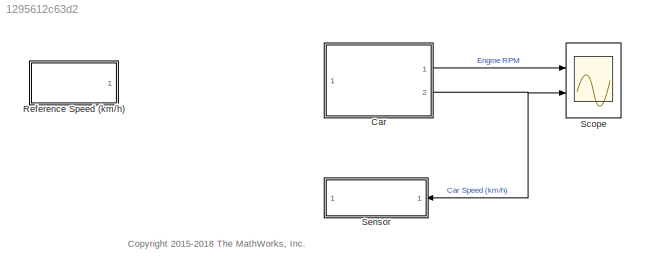
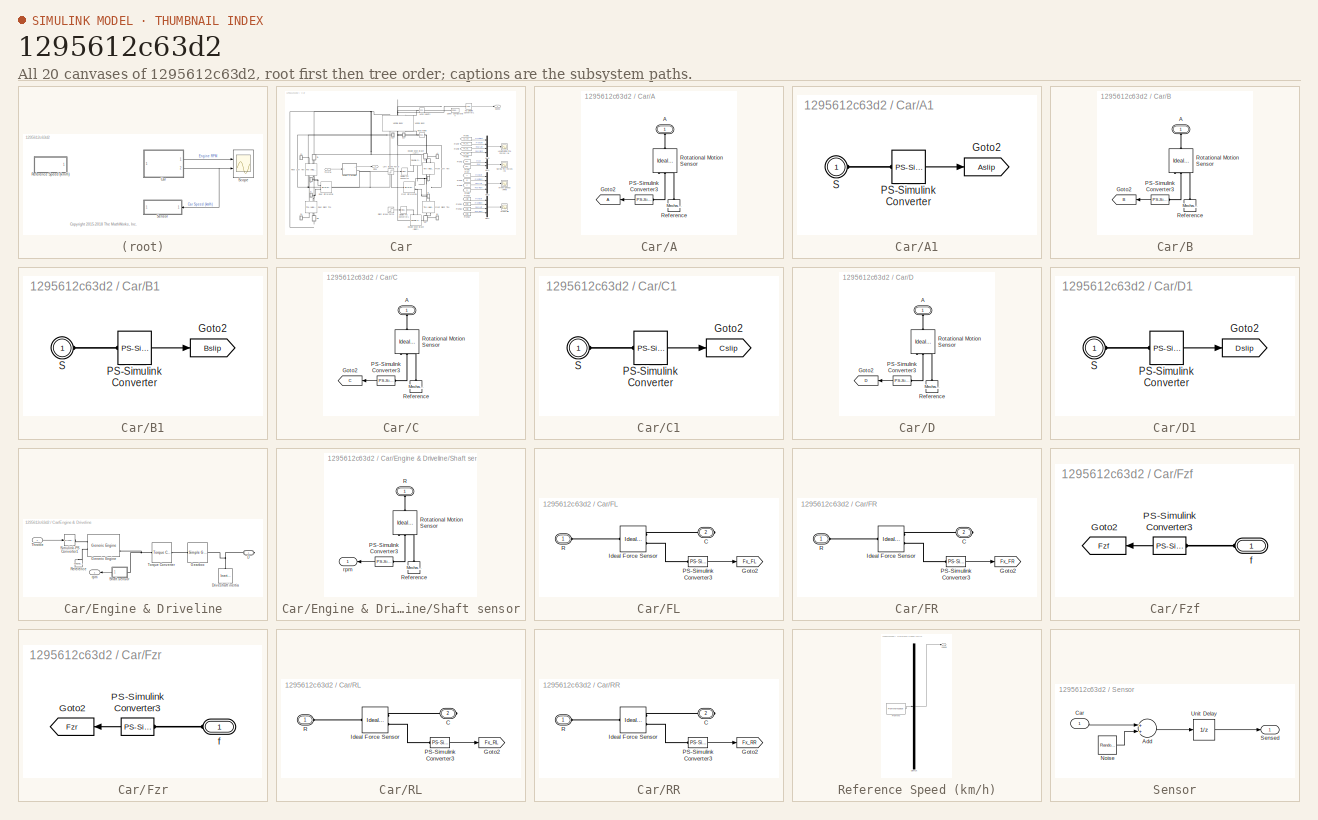
[diagram: thumbnail index - all 20 canvases of the model, root first then tree order]
MODEL slx_1295612c63d2
KIND model
CONFIG AbsTol = 1e-3
CONFIG EnableMultiTasking = on
CONFIG FixedStep = auto
CONFIG MaxStep = auto
CONFIG MinStep = auto
CONFIG RelTol = 1e-3
CONFIG SampleTimeConstraint = Unconstrained
CONFIG Solver = ode23t
CONFIG SolverName = ode23t
CONFIG StartTime = 0.0
CONFIG StopTime = 30
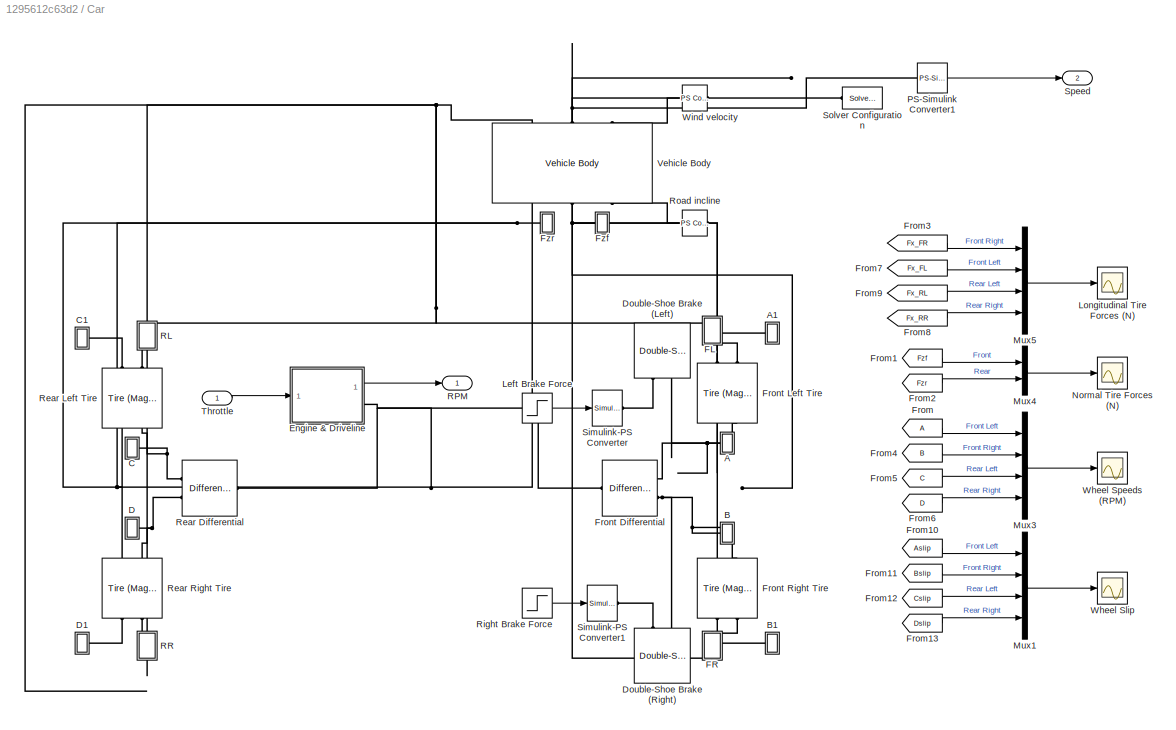
BLOCK [SubSystem] Car
  Ports = [1, 2]
  RequestExecContextInheritance = off
  Variant = off
BLOCK [SubSystem] Car/A
  Ports = [0, 0, 0, 0, 0, 1]
  RequestExecContextInheritance = off
  Variant = off
BLOCK [PMIOPort] Car/A/A
  Port = 1
  Side = Left
BLOCK [Goto] Car/A/Goto2
  TagVisibility = global
BLOCK [Reference] Car/A/PS-Simulink Converter3  REF=nesl_utility/PS-Simulink
Converter
  Ports = [0, 1, 0, 0, 0, 1]
  SourceBlock = nesl_utility/PS-Simulink\nConverter
  SourceProductBaseCode = SS
  SourceProductName = Simscape
  SourceType = PS-Simulink\nConverter
BLOCK [Reference] Car/A/Reference  REF=fl_lib/Mechanical/Rotational Elements/Mechanical
Rotational Reference
  Ports = [0, 0, 0, 0, 0, 1]
  SourceBlock = fl_lib/Mechanical/Rotational Elements/Mechanical\nRotational Reference
  SourceProductBaseCode = SS
  SourceProductName = Simscape
  SourceType = Mechanical\nRotational Reference
BLOCK [Reference] Car/A/Rotational Motion Sensor  REF=fl_lib/Mechanical/Mechanical Sensors/Ideal Rotational
Motion Sensor
  Ports = [0, 0, 0, 0, 0, 1, 3]
  SourceBlock = fl_lib/Mechanical/Mechanical Sensors/Ideal Rotational\nMotion Sensor
  SourceProductBaseCode = SS
  SourceProductName = Simscape
  SourceType = Ideal Rotational\nMotion Sensor
BLOCK [SubSystem] Car/A1
  Ports = [0, 0, 0, 0, 0, 1]
  RequestExecContextInheritance = off
  Variant = off
BLOCK [Goto] Car/A1/Goto2
  GotoTag = Aslip
  TagVisibility = global
BLOCK [Reference] Car/A1/PS-Simulink Converter  REF=nesl_utility/PS-Simulink
Converter
  Ports = [0, 1, 0, 0, 0, 1]
  SourceBlock = nesl_utility/PS-Simulink\nConverter
  SourceProductBaseCode = SS
  SourceProductName = Simscape
  SourceType = PS-Simulink\nConverter
BLOCK [PMIOPort] Car/A1/S
  Port = 1
  Side = Left
BLOCK [SubSystem] Car/B
  Ports = [0, 0, 0, 0, 0, 1]
  RequestExecContextInheritance = off
  Variant = off
BLOCK [PMIOPort] Car/B/A
  Port = 1
  Side = Left
BLOCK [Goto] Car/B/Goto2
  GotoTag = B
  TagVisibility = global
BLOCK [Reference] Car/B/PS-Simulink Converter3  REF=nesl_utility/PS-Simulink
Converter
  Ports = [0, 1, 0, 0, 0, 1]
  SourceBlock = nesl_utility/PS-Simulink\nConverter
  SourceProductBaseCode = SS
  SourceProductName = Simscape
  SourceType = PS-Simulink\nConverter
BLOCK [Reference] Car/B/Reference  REF=fl_lib/Mechanical/Rotational Elements/Mechanical
Rotational Reference
  Ports = [0, 0, 0, 0, 0, 1]
  SourceBlock = fl_lib/Mechanical/Rotational Elements/Mechanical\nRotational Reference
  SourceProductBaseCode = SS
  SourceProductName = Simscape
  SourceType = Mechanical\nRotational Reference
BLOCK [Reference] Car/B/Rotational Motion Sensor  REF=fl_lib/Mechanical/Mechanical Sensors/Ideal Rotational
Motion Sensor
  Ports = [0, 0, 0, 0, 0, 1, 3]
  SourceBlock = fl_lib/Mechanical/Mechanical Sensors/Ideal Rotational\nMotion Sensor
  SourceProductBaseCode = SS
  SourceProductName = Simscape
  SourceType = Ideal Rotational\nMotion Sensor
BLOCK [SubSystem] Car/B1
  Ports = [0, 0, 0, 0, 0, 1]
  RequestExecContextInheritance = off
  Variant = off
BLOCK [Goto] Car/B1/Goto2
  GotoTag = Bslip
  TagVisibility = global
BLOCK [Reference] Car/B1/PS-Simulink Converter  REF=nesl_utility/PS-Simulink
Converter
  Ports = [0, 1, 0, 0, 0, 1]
  SourceBlock = nesl_utility/PS-Simulink\nConverter
  SourceProductBaseCode = SS
  SourceProductName = Simscape
  SourceType = PS-Simulink\nConverter
BLOCK [PMIOPort] Car/B1/S
  Port = 1
  Side = Left
BLOCK [SubSystem] Car/C
  Ports = [0, 0, 0, 0, 0, 1]
  RequestExecContextInheritance = off
  Variant = off
BLOCK [PMIOPort] Car/C/A
  Port = 1
  Side = Left
BLOCK [Goto] Car/C/Goto2
  GotoTag = C
  TagVisibility = global
BLOCK [Reference] Car/C/PS-Simulink Converter3  REF=nesl_utility/PS-Simulink
Converter
  Ports = [0, 1, 0, 0, 0, 1]
  SourceBlock = nesl_utility/PS-Simulink\nConverter
  SourceProductBaseCode = SS
  SourceProductName = Simscape
  SourceType = PS-Simulink\nConverter
BLOCK [Reference] Car/C/Reference  REF=fl_lib/Mechanical/Rotational Elements/Mechanical
Rotational Reference
  Ports = [0, 0, 0, 0, 0, 1]
  SourceBlock = fl_lib/Mechanical/Rotational Elements/Mechanical\nRotational Reference
  SourceProductBaseCode = SS
  SourceProductName = Simscape
  SourceType = Mechanical\nRotational Reference
BLOCK [Reference] Car/C/Rotational Motion Sensor  REF=fl_lib/Mechanical/Mechanical Sensors/Ideal Rotational
Motion Sensor
  Ports = [0, 0, 0, 0, 0, 1, 3]
  SourceBlock = fl_lib/Mechanical/Mechanical Sensors/Ideal Rotational\nMotion Sensor
  SourceProductBaseCode = SS
  SourceProductName = Simscape
  SourceType = Ideal Rotational\nMotion Sensor
BLOCK [SubSystem] Car/C1
  Ports = [0, 0, 0, 0, 0, 1]
  RequestExecContextInheritance = off
  Variant = off
BLOCK [Goto] Car/C1/Goto2
  GotoTag = Cslip
  TagVisibility = global
BLOCK [Reference] Car/C1/PS-Simulink Converter  REF=nesl_utility/PS-Simulink
Converter
  Ports = [0, 1, 0, 0, 0, 1]
  SourceBlock = nesl_utility/PS-Simulink\nConverter
  SourceProductBaseCode = SS
  SourceProductName = Simscape
  SourceType = PS-Simulink\nConverter
BLOCK [PMIOPort] Car/C1/S
  Port = 1
  Side = Left
BLOCK [SubSystem] Car/D
  Ports = [0, 0, 0, 0, 0, 1]
  RequestExecContextInheritance = off
  Variant = off
BLOCK [PMIOPort] Car/D/A
  Port = 1
  Side = Left
BLOCK [Goto] Car/D/Goto2
  GotoTag = D
  TagVisibility = global
BLOCK [Reference] Car/D/PS-Simulink Converter3  REF=nesl_utility/PS-Simulink
Converter
  Ports = [0, 1, 0, 0, 0, 1]
  SourceBlock = nesl_utility/PS-Simulink\nConverter
  SourceProductBaseCode = SS
  SourceProductName = Simscape
  SourceType = PS-Simulink\nConverter
BLOCK [Reference] Car/D/Reference  REF=fl_lib/Mechanical/Rotational Elements/Mechanical
Rotational Reference
  Ports = [0, 0, 0, 0, 0, 1]
  SourceBlock = fl_lib/Mechanical/Rotational Elements/Mechanical\nRotational Reference
  SourceProductBaseCode = SS
  SourceProductName = Simscape
  SourceType = Mechanical\nRotational Reference
BLOCK [Reference] Car/D/Rotational Motion Sensor  REF=fl_lib/Mechanical/Mechanical Sensors/Ideal Rotational
Motion Sensor
  Ports = [0, 0, 0, 0, 0, 1, 3]
  SourceBlock = fl_lib/Mechanical/Mechanical Sensors/Ideal Rotational\nMotion Sensor
  SourceProductBaseCode = SS
  SourceProductName = Simscape
  SourceType = Ideal Rotational\nMotion Sensor
BLOCK [SubSystem] Car/D1
  Ports = [0, 0, 0, 0, 0, 1]
  RequestExecContextInheritance = off
  Variant = off
BLOCK [Goto] Car/D1/Goto2
  GotoTag = Dslip
  TagVisibility = global
BLOCK [Reference] Car/D1/PS-Simulink Converter  REF=nesl_utility/PS-Simulink
Converter
  Ports = [0, 1, 0, 0, 0, 1]
  SourceBlock = nesl_utility/PS-Simulink\nConverter
  SourceProductBaseCode = SS
  SourceProductName = Simscape
  SourceType = PS-Simulink\nConverter
BLOCK [PMIOPort] Car/D1/S
  Port = 1
  Side = Left
BLOCK [Reference] Car/Double-Shoe Brake (Left)  REF=sdl_lib/Brakes & Detents/Rotational/Double-Shoe Brake
  Ports = [0, 0, 0, 0, 0, 2]
  SourceBlock = sdl_lib/Brakes & Detents/Rotational/Double-Shoe Brake
  SourceProductBaseCode = LD
  SourceProductName = Simscape Driveline
  SourceType = Double-Shoe Brake
BLOCK [Reference] Car/Double-Shoe Brake (Right)  REF=sdl_lib/Brakes & Detents/Rotational/Double-Shoe Brake
  Ports = [0, 0, 0, 0, 0, 2]
  SourceBlock = sdl_lib/Brakes & Detents/Rotational/Double-Shoe Brake
  SourceProductBaseCode = LD
  SourceProductName = Simscape Driveline
  SourceType = Double-Shoe Brake
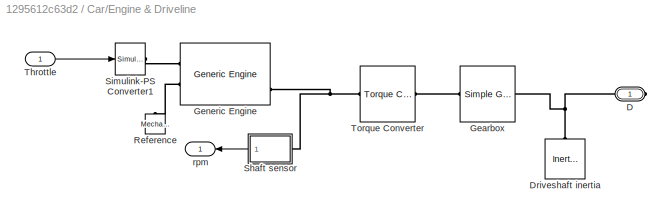
BLOCK [SubSystem] Car/Engine & Driveline
  Ports = [1, 1, 0, 0, 0, 0, 1]
  RequestExecContextInheritance = off
  Variant = off
BLOCK [PMIOPort] Car/Engine & Driveline/D
  Port = 1
  Side = Right
BLOCK [Reference] Car/Engine & Driveline/Driveshaft inertia  REF=fl_lib/Mechanical/Rotational Elements/Inertia
  Ports = [0, 0, 0, 0, 0, 1]
  SourceBlock = fl_lib/Mechanical/Rotational Elements/Inertia
  SourceProductBaseCode = SS
  SourceProductName = Simscape
  SourceType = Inertia
BLOCK [Reference] Car/Engine & Driveline/Gearbox  REF=sdl_lib/Gears/Simple Gear
  Ports = [0, 0, 0, 0, 0, 1, 1]
  SourceBlock = sdl_lib/Gears/Simple Gear
  SourceProductBaseCode = LD
  SourceProductName = Simscape Driveline
  SourceType = Simple Gear
BLOCK [Reference] Car/Engine & Driveline/Generic Engine  REF=sdl_lib/Engines/Generic Engine
  Ports = [0, 0, 0, 0, 0, 2, 3]
  SourceBlock = sdl_lib/Engines/Generic Engine
  SourceProductBaseCode = LD
  SourceProductName = Simscape Driveline
  SourceType = Generic Engine
BLOCK [Reference] Car/Engine & Driveline/Reference  REF=fl_lib/Mechanical/Rotational Elements/Mechanical
Rotational Reference
  Ports = [0, 0, 0, 0, 0, 1]
  SourceBlock = fl_lib/Mechanical/Rotational Elements/Mechanical\nRotational Reference
  SourceProductBaseCode = SS
  SourceProductName = Simscape
  SourceType = Mechanical\nRotational Reference
BLOCK [SubSystem] Car/Engine & Driveline/Shaft sensor
  Ports = [0, 1, 0, 0, 0, 1]
  RequestExecContextInheritance = off
  Variant = off
BLOCK [Reference] Car/Engine & Driveline/Shaft sensor/PS-Simulink Converter3  REF=nesl_utility/PS-Simulink
Converter
  Ports = [0, 1, 0, 0, 0, 1]
  SourceBlock = nesl_utility/PS-Simulink\nConverter
  SourceProductBaseCode = SS
  SourceProductName = Simscape
  SourceType = PS-Simulink\nConverter
BLOCK [PMIOPort] Car/Engine & Driveline/Shaft sensor/R
  Port = 1
  Side = Left
BLOCK [Reference] Car/Engine & Driveline/Shaft sensor/Reference  REF=fl_lib/Mechanical/Rotational Elements/Mechanical
Rotational Reference
  Ports = [0, 0, 0, 0, 0, 1]
  SourceBlock = fl_lib/Mechanical/Rotational Elements/Mechanical\nRotational Reference
  SourceProductBaseCode = SS
  SourceProductName = Simscape
  SourceType = Mechanical\nRotational Reference
BLOCK [Reference] Car/Engine & Driveline/Shaft sensor/Rotational Motion Sensor  REF=fl_lib/Mechanical/Mechanical Sensors/Ideal Rotational
Motion Sensor
  Ports = [0, 0, 0, 0, 0, 1, 3]
  SourceBlock = fl_lib/Mechanical/Mechanical Sensors/Ideal Rotational\nMotion Sensor
  SourceProductBaseCode = SS
  SourceProductName = Simscape
  SourceType = Ideal Rotational\nMotion Sensor
BLOCK [Outport] Car/Engine & Driveline/Shaft sensor/rpm
  IconDisplay = Port number
BLOCK [Reference] Car/Engine & Driveline/Simulink-PS Converter1  REF=nesl_utility/Simulink-PS
Converter
  Ports = [1, 0, 0, 0, 0, 0, 1]
  SourceBlock = nesl_utility/Simulink-PS\nConverter
  SourceProductBaseCode = SS
  SourceProductName = Simscape
  SourceType = Simulink-PS\nConverter
BLOCK [Inport] Car/Engine & Driveline/Throttle
  IconDisplay = Port number
BLOCK [Reference] Car/Engine & Driveline/Torque Converter  REF=sdl_lib/Couplings & Drives/Torque Converter
  Ports = [0, 0, 0, 0, 0, 1, 1]
  SourceBlock = sdl_lib/Couplings & Drives/Torque Converter
  SourceProductBaseCode = LD
  SourceProductName = Simscape Driveline
  SourceType = Torque Converter
BLOCK [Outport] Car/Engine & Driveline/rpm
  IconDisplay = Port number
BLOCK [SubSystem] Car/FL
  Ports = [0, 0, 0, 0, 0, 1, 1]
  RequestExecContextInheritance = off
  Variant = off
BLOCK [PMIOPort] Car/FL/C
  Port = 2
  Side = Right
BLOCK [Goto] Car/FL/Goto2
  GotoTag = Fx_FL
  TagVisibility = global
BLOCK [Reference] Car/FL/Ideal Force Sensor  REF=fl_lib/Mechanical/Mechanical Sensors/Ideal Force Sensor
  Ports = [0, 0, 0, 0, 0, 1, 2]
  SourceBlock = fl_lib/Mechanical/Mechanical Sensors/Ideal Force Sensor
  SourceProductBaseCode = SS
  SourceProductName = Simscape
  SourceType = Ideal Force Sensor
BLOCK [Reference] Car/FL/PS-Simulink Converter3  REF=nesl_utility/PS-Simulink
Converter
  Ports = [0, 1, 0, 0, 0, 1]
  SourceBlock = nesl_utility/PS-Simulink\nConverter
  SourceProductBaseCode = SS
  SourceProductName = Simscape
  SourceType = PS-Simulink\nConverter
BLOCK [PMIOPort] Car/FL/R
  Port = 1
  Side = Left
BLOCK [SubSystem] Car/FR
  Ports = [0, 0, 0, 0, 0, 1, 1]
  RequestExecContextInheritance = off
  Variant = off
BLOCK [PMIOPort] Car/FR/C
  Port = 2
  Side = Right
BLOCK [Goto] Car/FR/Goto2
  GotoTag = Fx_FR
  TagVisibility = global
BLOCK [Reference] Car/FR/Ideal Force Sensor  REF=fl_lib/Mechanical/Mechanical Sensors/Ideal Force Sensor
  Ports = [0, 0, 0, 0, 0, 1, 2]
  SourceBlock = fl_lib/Mechanical/Mechanical Sensors/Ideal Force Sensor
  SourceProductBaseCode = SS
  SourceProductName = Simscape
  SourceType = Ideal Force Sensor
BLOCK [Reference] Car/FR/PS-Simulink Converter3  REF=nesl_utility/PS-Simulink
Converter
  Ports = [0, 1, 0, 0, 0, 1]
  SourceBlock = nesl_utility/PS-Simulink\nConverter
  SourceProductBaseCode = SS
  SourceProductName = Simscape
  SourceType = PS-Simulink\nConverter
BLOCK [PMIOPort] Car/FR/R
  Port = 1
  Side = Left
BLOCK [From] Car/From
  CloseFcn = tagdialog Close
  TagVisibility = global
BLOCK [From] Car/From1
  CloseFcn = tagdialog Close
  GotoTag = Fzf
  TagVisibility = global
BLOCK [From] Car/From10
  CloseFcn = tagdialog Close
  GotoTag = Aslip
  TagVisibility = global
BLOCK [From] Car/From11
  CloseFcn = tagdialog Close
  GotoTag = Bslip
  TagVisibility = global
BLOCK [From] Car/From12
  CloseFcn = tagdialog Close
  GotoTag = Cslip
  TagVisibility = global
BLOCK [From] Car/From13
  CloseFcn = tagdialog Close
  GotoTag = Dslip
  TagVisibility = global
BLOCK [From] Car/From2
  CloseFcn = tagdialog Close
  GotoTag = Fzr
  TagVisibility = global
BLOCK [From] Car/From3
  CloseFcn = tagdialog Close
  GotoTag = Fx_FR
  TagVisibility = global
BLOCK [From] Car/From4
  CloseFcn = tagdialog Close
  GotoTag = B
  TagVisibility = global
BLOCK [From] Car/From5
  CloseFcn = tagdialog Close
  GotoTag = C
  TagVisibility = global
BLOCK [From] Car/From6
  CloseFcn = tagdialog Close
  GotoTag = D
  TagVisibility = global
BLOCK [From] Car/From7
  CloseFcn = tagdialog Close
  GotoTag = Fx_FL
  TagVisibility = global
BLOCK [From] Car/From8
  CloseFcn = tagdialog Close
  GotoTag = Fx_RR
  TagVisibility = global
BLOCK [From] Car/From9
  CloseFcn = tagdialog Close
  GotoTag = Fx_RL
  TagVisibility = global
BLOCK [Reference] Car/Front Differential  REF=sdl_lib/Gears/Differential
  Ports = [0, 0, 0, 0, 0, 1, 2]
  SourceBlock = sdl_lib/Gears/Differential
  SourceProductBaseCode = LD
  SourceProductName = Simscape Driveline
  SourceType = Differential
BLOCK [Reference] Car/Front Left Tire  REF=sdl_lib/Tires & Vehicles/Tire (Magic Formula)
  Ports = [0, 0, 0, 0, 0, 2, 2]
  SourceBlock = sdl_lib/Tires & Vehicles/Tire (Magic Formula)
  SourceProductBaseCode = LD
  SourceProductName = Simscape Driveline
  SourceType = Tire (Magic Formula)
BLOCK [Reference] Car/Front Right Tire  REF=sdl_lib/Tires & Vehicles/Tire (Magic Formula)
  Ports = [0, 0, 0, 0, 0, 2, 2]
  SourceBlock = sdl_lib/Tires & Vehicles/Tire (Magic Formula)
  SourceProductBaseCode = LD
  SourceProductName = Simscape Driveline
  SourceType = Tire (Magic Formula)
BLOCK [SubSystem] Car/Fzf
  Ports = [0, 0, 0, 0, 0, 1]
  RequestExecContextInheritance = off
  Variant = off
BLOCK [Goto] Car/Fzf/Goto2
  GotoTag = Fzf
  TagVisibility = global
BLOCK [Reference] Car/Fzf/PS-Simulink Converter3  REF=nesl_utility/PS-Simulink
Converter
  Ports = [0, 1, 0, 0, 0, 1]
  SourceBlock = nesl_utility/PS-Simulink\nConverter
  SourceProductBaseCode = SS
  SourceProductName = Simscape
  SourceType = PS-Simulink\nConverter
BLOCK [PMIOPort] Car/Fzf/f
  Port = 1
  Side = Left
BLOCK [SubSystem] Car/Fzr
  Ports = [0, 0, 0, 0, 0, 1]
  RequestExecContextInheritance = off
  Variant = off
BLOCK [Goto] Car/Fzr/Goto2
  GotoTag = Fzr
  TagVisibility = global
BLOCK [Reference] Car/Fzr/PS-Simulink Converter3  REF=nesl_utility/PS-Simulink
Converter
  Ports = [0, 1, 0, 0, 0, 1]
  SourceBlock = nesl_utility/PS-Simulink\nConverter
  SourceProductBaseCode = SS
  SourceProductName = Simscape
  SourceType = PS-Simulink\nConverter
BLOCK [PMIOPort] Car/Fzr/f
  Port = 1
  Side = Left
BLOCK [Step] Car/Left Brake Force
  After = 1000
  AttributesFormatString = Brake on @ %<Time> s
  SampleTime = 0
  Time = 40
BLOCK [Scope] Car/Longitudinal Tire Forces (N)
  NumInputPorts = 1
  Ports = [1]
  ScopeSpecificationString = C++SS(StrPVP('Location','[720, 67, 1269, 624]'),StrPVP('Open','off'),StrPVP('ZoomMode','yonly'),MxPVP('AxesTitles',53,'struct(''axes1'',''%<SignalLabel>'')'),MxPVP('ScopeGraphics',56,'struct(''FigureColor'',''[0.501960784313725 0.501960784313725 0.501960784313725]'',''AxesColor'',''[0 0 0]'',''AxesTickColor'',''[1 1 1]'',''LineColors'',''[1 1 0;1 0 1;0 1 1;1 0 0;0 1 0;0 0 1]'',''LineStyles'',''-|-...<+409ch>
BLOCK [Mux] Car/Mux1
  DisplayOption = bar
  Ports = [4, 1]
BLOCK [Mux] Car/Mux3
  DisplayOption = bar
  Ports = [4, 1]
BLOCK [Mux] Car/Mux4
  DisplayOption = bar
  Inputs = 2
  Ports = [2, 1]
BLOCK [Mux] Car/Mux5
  DisplayOption = bar
  Ports = [4, 1]
BLOCK [Scope] Car/Normal Tire Forces (N)
  NumInputPorts = 1
  Ports = [1]
  ScopeSpecificationString = C++SS(StrPVP('Location','[719, 77, 1274, 604]'),StrPVP('Open','off'),MxPVP('AxesTitles',53,'struct(''axes1'',''%<SignalLabel>'')'),MxPVP('ScopeGraphics',56,'struct(''FigureColor'',''[0.501960784313725 0.501960784313725 0.501960784313725]'',''AxesColor'',''[0 0 0]'',''AxesTickColor'',''[1 1 1]'',''LineColors'',''[1 1 0;1 0 1;0 1 1;1 0 0;0 1 0;0 0 1]'',''LineStyles'',''-|-|-|-|-|-'',''LineWidths'','...<+382ch>
BLOCK [Reference] Car/PS-Simulink Converter1  REF=nesl_utility/PS-Simulink
Converter
  Ports = [0, 1, 0, 0, 0, 1]
  SourceBlock = nesl_utility/PS-Simulink\nConverter
  SourceProductBaseCode = SS
  SourceProductName = Simscape
  SourceType = PS-Simulink\nConverter
BLOCK [SubSystem] Car/RL
  Ports = [0, 0, 0, 0, 0, 1, 1]
  RequestExecContextInheritance = off
  Variant = off
BLOCK [PMIOPort] Car/RL/C
  Port = 2
  Side = Right
BLOCK [Goto] Car/RL/Goto2
  GotoTag = Fx_RL
  TagVisibility = global
BLOCK [Reference] Car/RL/Ideal Force Sensor  REF=fl_lib/Mechanical/Mechanical Sensors/Ideal Force Sensor
  Ports = [0, 0, 0, 0, 0, 1, 2]
  SourceBlock = fl_lib/Mechanical/Mechanical Sensors/Ideal Force Sensor
  SourceProductBaseCode = SS
  SourceProductName = Simscape
  SourceType = Ideal Force Sensor
BLOCK [Reference] Car/RL/PS-Simulink Converter3  REF=nesl_utility/PS-Simulink
Converter
  Ports = [0, 1, 0, 0, 0, 1]
  SourceBlock = nesl_utility/PS-Simulink\nConverter
  SourceProductBaseCode = SS
  SourceProductName = Simscape
  SourceType = PS-Simulink\nConverter
BLOCK [PMIOPort] Car/RL/R
  Port = 1
  Side = Left
BLOCK [Outport] Car/RPM
  IconDisplay = Port number
BLOCK [SubSystem] Car/RR
  Ports = [0, 0, 0, 0, 0, 1, 1]
  RequestExecContextInheritance = off
  Variant = off
BLOCK [PMIOPort] Car/RR/C
  Port = 2
  Side = Right
BLOCK [Goto] Car/RR/Goto2
  GotoTag = Fx_RR
  TagVisibility = global
BLOCK [Reference] Car/RR/Ideal Force Sensor  REF=fl_lib/Mechanical/Mechanical Sensors/Ideal Force Sensor
  Ports = [0, 0, 0, 0, 0, 1, 2]
  SourceBlock = fl_lib/Mechanical/Mechanical Sensors/Ideal Force Sensor
  SourceProductBaseCode = SS
  SourceProductName = Simscape
  SourceType = Ideal Force Sensor
BLOCK [Reference] Car/RR/PS-Simulink Converter3  REF=nesl_utility/PS-Simulink
Converter
  Ports = [0, 1, 0, 0, 0, 1]
  SourceBlock = nesl_utility/PS-Simulink\nConverter
  SourceProductBaseCode = SS
  SourceProductName = Simscape
  SourceType = PS-Simulink\nConverter
BLOCK [PMIOPort] Car/RR/R
  Port = 1
  Side = Left
BLOCK [Reference] Car/Rear Differential  REF=sdl_lib/Gears/Differential
  Ports = [0, 0, 0, 0, 0, 1, 2]
  SourceBlock = sdl_lib/Gears/Differential
  SourceProductBaseCode = LD
  SourceProductName = Simscape Driveline
  SourceType = Differential
BLOCK [Reference] Car/Rear Left Tire  REF=sdl_lib/Tires & Vehicles/Tire (Magic Formula)
  Ports = [0, 0, 0, 0, 0, 2, 2]
  SourceBlock = sdl_lib/Tires & Vehicles/Tire (Magic Formula)
  SourceProductBaseCode = LD
  SourceProductName = Simscape Driveline
  SourceType = Tire (Magic Formula)
BLOCK [Reference] Car/Rear Right Tire  REF=sdl_lib/Tires & Vehicles/Tire (Magic Formula)
  Ports = [0, 0, 0, 0, 0, 2, 2]
  SourceBlock = sdl_lib/Tires & Vehicles/Tire (Magic Formula)
  SourceProductBaseCode = LD
  SourceProductName = Simscape Driveline
  SourceType = Tire (Magic Formula)
BLOCK [Step] Car/Right Brake Force
  After = 1000
  AttributesFormatString = Brake on @ %<Time> s
  SampleTime = 0
  Time = 40
BLOCK [Reference] Car/Road incline  REF=fl_lib/Physical Signals/Sources/PS Constant
  Ports = [0, 0, 0, 0, 0, 0, 1]
  SourceBlock = fl_lib/Physical Signals/Sources/PS Constant
  SourceProductBaseCode = SS
  SourceProductName = Simscape
  SourceType = PS Constant
BLOCK [Reference] Car/Simulink-PS Converter  REF=nesl_utility/Simulink-PS
Converter
  Ports = [1, 0, 0, 0, 0, 0, 1]
  SourceBlock = nesl_utility/Simulink-PS\nConverter
  SourceProductBaseCode = SS
  SourceProductName = Simscape
  SourceType = Simulink-PS\nConverter
BLOCK [Reference] Car/Simulink-PS Converter1  REF=nesl_utility/Simulink-PS
Converter
  Ports = [1, 0, 0, 0, 0, 0, 1]
  SourceBlock = nesl_utility/Simulink-PS\nConverter
  SourceProductBaseCode = SS
  SourceProductName = Simscape
  SourceType = Simulink-PS\nConverter
BLOCK [Reference] Car/Solver Configuration  REF=nesl_utility/Solver
Configuration
  Ports = [0, 0, 0, 0, 0, 0, 1]
  SourceBlock = nesl_utility/Solver\nConfiguration
  SourceProductBaseCode = SS
  SourceProductName = Simscape
  SourceType = Solver\nConfiguration
BLOCK [Outport] Car/Speed
  IconDisplay = Port number
  Port = 2
BLOCK [Inport] Car/Throttle
  IconDisplay = Port number
BLOCK [Reference] Car/Vehicle Body  REF=sdl_lib/Tires & Vehicles/Vehicle Body
  Ports = [0, 0, 0, 0, 0, 3, 3]
  SourceBlock = sdl_lib/Tires & Vehicles/Vehicle Body
  SourceProductBaseCode = LD
  SourceProductName = Simscape Driveline
  SourceType = Vehicle Body
BLOCK [Scope] Car/Wheel Slip
  NumInputPorts = 1
  Ports = [1]
  ScopeSpecificationString = C++SS(StrPVP('Location','[787, 69, 1276, 528]'),StrPVP('Open','off'),StrPVP('ZoomMode','xonly'),MxPVP('AxesTitles',53,'struct(''axes1'',''%<SignalLabel>'')'),MxPVP('ScopeGraphics',56,'struct(''FigureColor'',''[0.501960784313725 0.501960784313725 0.501960784313725]'',''AxesColor'',''[0 0 0]'',''AxesTickColor'',''[1 1 1]'',''LineColors'',''[1 1 0;1 0 1;0 1 1;1 0 0;0 1 0;0 0 1]'',''LineStyles'',''-|-...<+379ch>
BLOCK [Scope] Car/Wheel Speeds (RPM)
  NumInputPorts = 1
  Ports = [1]
  ScopeSpecificationString = C++SS(StrPVP('Location','[738, 69, 1273, 560]'),StrPVP('Open','off'),StrPVP('ZoomMode','xonly'),MxPVP('AxesTitles',53,'struct(''axes1'',''%<SignalLabel>'')'),MxPVP('ScopeGraphics',56,'struct(''FigureColor'',''[0.501960784313725 0.501960784313725 0.501960784313725]'',''AxesColor'',''[0 0 0]'',''AxesTickColor'',''[1 1 1]'',''LineColors'',''[1 1 0;1 0 1;0 1 1;1 0 0;0 1 0;0 0 1]'',''LineStyles'',''-|-...<+407ch>
BLOCK [Reference] Car/Wind velocity  REF=fl_lib/Physical Signals/Sources/PS Constant
  Ports = [0, 0, 0, 0, 0, 0, 1]
  SourceBlock = fl_lib/Physical Signals/Sources/PS Constant
  SourceProductBaseCode = SS
  SourceProductName = Simscape
  SourceType = PS Constant
BLOCK [SubSystem] Reference Speed (km//h)
  ClipboardFcn = sigbuilder_block('clipboard');
  CloseFcn = sigbuilder_block('close');
  ContinueFcn = sigbuilder_block('continue');
  CopyFcn = sigbuilder_block('copy');
  DeleteFcn = sigbuilder_block('delete');
  LoadFcn = sigbuilder_block('load');
  MaskHideContents = on
  ModelCloseFcn = sigbuilder_block('modelClose');
  NameChangeFcn = sigbuilder_block('namechange');
  OpenFcn = sigbuilder_block('open',[437.25 199.5 550.5 399.75 ]);
  PauseFcn = sigbuilder_block('pause');
  Ports = [0, 1]
  PreSaveFcn = sigbuilder_block('preSave');
  RequestExecContextInheritance = off
  StartFcn = sigbuilder_block('start');
  StopFcn = sigbuilder_block('stop');
  Tag = STV Subsys
  Variant = off
BLOCK [Demux] Reference Speed (km//h)/Demux
  Outputs = 1
  Ports = [1, 1]
  Tag = STV Demux
BLOCK [FromWorkspace] Reference Speed (km//h)/FromWs
  SampleTime = 0
  Tag = STV FromWs
  VariableName = tuvar
  ZeroCross = on
BLOCK [Outport] Reference Speed (km//h)/speed
  IconDisplay = Port number
  Tag = STV Outport
BLOCK [Scope] Scope
  NumInputPorts = 2
  Ports = [2]
  ScopeSpecificationString = C++SS(StrPVP('Location','[848, 73, 1194, 466]'),StrPVP('Open','off'),StrPVP('ZoomMode','yonly'),MxPVP('AxesTitles',53,'struct(''axes1'',''%<SignalLabel>'',''axes2'',''%<SignalLabel>'')'),MxPVP('ScopeGraphics',56,'struct(''FigureColor'',''[0.5 0.5 0.5]'',''AxesColor'',''[0 0 0]'',''AxesTickColor'',''[1 1 1]'',''LineColors'',''[1 1 0;1 0 1;0 1 1;1 0 0;0 1 0;0 0 1]'',''LineStyles'',''-|-|-|-|-|-'',''...<+381ch>
BLOCK [SubSystem] Sensor
  Ports = [1, 1]
  RequestExecContextInheritance = off
  Variant = off
BLOCK [Sum] Sensor/Add
  InputSameDT = off
  OutDataTypeStr = Inherit: Inherit via internal rule
  Ports = [2, 1]
  SaturateOnIntegerOverflow = off
BLOCK [Inport] Sensor/Car
  IconDisplay = Port number
BLOCK [RandomNumber] Sensor/Noise
  SampleTime = 0.1
  Variance = 0.01
BLOCK [Outport] Sensor/Sensed
  IconDisplay = Port number
BLOCK [UnitDelay] Sensor/Unit Delay
  InputProcessing = Elements as channels (sample based)
  SampleTime = 0.1
ANNOTATION (root): <copyright redacted>
LINE Car/A/PS-Simulink Converter3:1 -> Car/A/Goto2:1
LINE Car/A1/PS-Simulink Converter:1 -> Car/A1/Goto2:1
LINE Car/B/PS-Simulink Converter3:1 -> Car/B/Goto2:1
LINE Car/B1/PS-Simulink Converter:1 -> Car/B1/Goto2:1
LINE Car/C/PS-Simulink Converter3:1 -> Car/C/Goto2:1
LINE Car/C1/PS-Simulink Converter:1 -> Car/C1/Goto2:1
LINE Car/D/PS-Simulink Converter3:1 -> Car/D/Goto2:1
LINE Car/D1/PS-Simulink Converter:1 -> Car/D1/Goto2:1
LINE Car/Engine & Driveline/Shaft sensor/PS-Simulink Converter3:1 -> Car/Engine & Driveline/Shaft sensor/rpm:1
LINE Car/Engine & Driveline/Shaft sensor:1 -> Car/Engine & Driveline/rpm:1
LINE Car/Engine & Driveline/Throttle:1 -> Car/Engine & Driveline/Simulink-PS Converter1:1
LINE Car/Engine & Driveline:1 -> Car/RPM:1
LINE Car/FL/PS-Simulink Converter3:1 -> Car/FL/Goto2:1
LINE Car/FR/PS-Simulink Converter3:1 -> Car/FR/Goto2:1
LINE Car/From10:1 -> Car/Mux1:1
LINE Car/From11:1 -> Car/Mux1:2
LINE Car/From12:1 -> Car/Mux1:3
LINE Car/From13:1 -> Car/Mux1:4
LINE Car/From1:1 -> Car/Mux4:1
LINE Car/From2:1 -> Car/Mux4:2
LINE Car/From3:1 -> Car/Mux5:1
LINE Car/From4:1 -> Car/Mux3:2
LINE Car/From5:1 -> Car/Mux3:3
LINE Car/From6:1 -> Car/Mux3:4
LINE Car/From7:1 -> Car/Mux5:2
LINE Car/From8:1 -> Car/Mux5:4
LINE Car/From9:1 -> Car/Mux5:3
LINE Car/From:1 -> Car/Mux3:1
LINE Car/Fzf/PS-Simulink Converter3:1 -> Car/Fzf/Goto2:1
LINE Car/Fzr/PS-Simulink Converter3:1 -> Car/Fzr/Goto2:1
LINE Car/Left Brake Force:1 -> Car/Simulink-PS Converter:1
LINE Car/Mux1:1 -> Car/Wheel Slip:1
LINE Car/Mux3:1 -> Car/Wheel Speeds (RPM):1
LINE Car/Mux4:1 -> Car/Normal Tire Forces (N):1
LINE Car/Mux5:1 -> Car/Longitudinal Tire Forces (N):1
LINE Car/PS-Simulink Converter1:1 -> Car/Speed:1
LINE Car/RL/PS-Simulink Converter3:1 -> Car/RL/Goto2:1
LINE Car/RR/PS-Simulink Converter3:1 -> Car/RR/Goto2:1
LINE Car/Right Brake Force:1 -> Car/Simulink-PS Converter1:1
LINE Car/Throttle:1 -> Car/Engine & Driveline:1
LINE Car:1 -> Scope:1
NET Car:2 -> Scope:2, Sensor:1
LINE Sensor/Add:1 -> Sensor/Unit Delay:1
LINE Sensor/Car:1 -> Sensor/Add:1
LINE Sensor/Noise:1 -> Sensor/Add:2
LINE Sensor/Unit Delay:1 -> Sensor/Sensed:1
PLINE Car/A/A:RConn1 -- Car/A/Rotational Motion Sensor:LConn1
PLINE Car/A/PS-Simulink Converter3:LConn1 -- Car/A/Rotational Motion Sensor:RConn2
PLINE Car/A/Reference:LConn1 -- Car/A/Rotational Motion Sensor:RConn1
PLINE Car/A1/PS-Simulink Converter:LConn1 -- Car/A1/S:RConn1
PLINE Car/A1:LConn1 -- Car/Front Left Tire:RConn1
PNET net1: Car/A:LConn1 -- Car/Double-Shoe Brake (Left):LConn2 -- Car/Front Differential:RConn1 -- Car/Front Left Tire:LConn2
PLINE Car/B/A:RConn1 -- Car/B/Rotational Motion Sensor:LConn1
PLINE Car/B/PS-Simulink Converter3:LConn1 -- Car/B/Rotational Motion Sensor:RConn2
PLINE Car/B/Reference:LConn1 -- Car/B/Rotational Motion Sensor:RConn1
PLINE Car/B1/PS-Simulink Converter:LConn1 -- Car/B1/S:RConn1
PLINE Car/B1:LConn1 -- Car/Front Right Tire:RConn1
PNET net2: Car/B:LConn1 -- Car/Double-Shoe Brake (Right):LConn2 -- Car/Front Differential:RConn2 -- Car/Front Right Tire:LConn2
PLINE Car/C/A:RConn1 -- Car/C/Rotational Motion Sensor:LConn1
PLINE Car/C/PS-Simulink Converter3:LConn1 -- Car/C/Rotational Motion Sensor:RConn2
PLINE Car/C/Reference:LConn1 -- Car/C/Rotational Motion Sensor:RConn1
PLINE Car/C1/PS-Simulink Converter:LConn1 -- Car/C1/S:RConn1
PLINE Car/C1:LConn1 -- Car/Rear Left Tire:RConn1
PNET net3: Car/C:LConn1 -- Car/Rear Differential:RConn1 -- Car/Rear Left Tire:LConn2
PLINE Car/D/A:RConn1 -- Car/D/Rotational Motion Sensor:LConn1
PLINE Car/D/PS-Simulink Converter3:LConn1 -- Car/D/Rotational Motion Sensor:RConn2
PLINE Car/D/Reference:LConn1 -- Car/D/Rotational Motion Sensor:RConn1
PLINE Car/D1/PS-Simulink Converter:LConn1 -- Car/D1/S:RConn1
PLINE Car/D1:LConn1 -- Car/Rear Right Tire:RConn1
PNET net4: Car/D:LConn1 -- Car/Rear Differential:RConn2 -- Car/Rear Right Tire:LConn2
PLINE Car/Double-Shoe Brake (Left):LConn1 -- Car/Simulink-PS Converter:RConn1
PLINE Car/Double-Shoe Brake (Right):LConn1 -- Car/Simulink-PS Converter1:RConn1
PNET net5: Car/Engine & Driveline/D:RConn1 -- Car/Engine & Driveline/Driveshaft inertia:LConn1 -- Car/Engine & Driveline/Gearbox:RConn1
PLINE Car/Engine & Driveline/Gearbox:LConn1 -- Car/Engine & Driveline/Torque Converter:RConn1
PLINE Car/Engine & Driveline/Generic Engine:LConn1 -- Car/Engine & Driveline/Simulink-PS Converter1:RConn1
PLINE Car/Engine & Driveline/Generic Engine:LConn2 -- Car/Engine & Driveline/Reference:LConn1
PNET net6: Car/Engine & Driveline/Generic Engine:RConn3 -- Car/Engine & Driveline/Shaft sensor:LConn1 -- Car/Engine & Driveline/Torque Converter:LConn1
PLINE Car/Engine & Driveline/Shaft sensor/PS-Simulink Converter3:LConn1 -- Car/Engine & Driveline/Shaft sensor/Rotational Motion Sensor:RConn2
PLINE Car/Engine & Driveline/Shaft sensor/R:RConn1 -- Car/Engine & Driveline/Shaft sensor/Rotational Motion Sensor:LConn1
PLINE Car/Engine & Driveline/Shaft sensor/Reference:LConn1 -- Car/Engine & Driveline/Shaft sensor/Rotational Motion Sensor:RConn1
PNET net7: Car/Engine & Driveline:RConn1 -- Car/Front Differential:LConn1 -- Car/Rear Differential:LConn1
PLINE Car/FL/C:RConn1 -- Car/FL/Ideal Force Sensor:RConn1
PLINE Car/FL/Ideal Force Sensor:LConn1 -- Car/FL/R:RConn1
PLINE Car/FL/Ideal Force Sensor:RConn2 -- Car/FL/PS-Simulink Converter3:LConn1
PLINE Car/FL:LConn1 -- Car/Front Left Tire:RConn2
PNET net8: Car/FL:RConn1 -- Car/FR:RConn1 -- Car/RL:RConn1 -- Car/RR:RConn1 -- Car/Vehicle Body:LConn1
PLINE Car/FR/C:RConn1 -- Car/FR/Ideal Force Sensor:RConn1
PLINE Car/FR/Ideal Force Sensor:LConn1 -- Car/FR/R:RConn1
PLINE Car/FR/Ideal Force Sensor:RConn2 -- Car/FR/PS-Simulink Converter3:LConn1
PLINE Car/FR:LConn1 -- Car/Front Right Tire:RConn2
PNET net9: Car/Front Left Tire:LConn1 -- Car/Front Right Tire:LConn1 -- Car/Fzf:LConn1 -- Car/Vehicle Body:RConn2
PLINE Car/Fzf/PS-Simulink Converter3:LConn1 -- Car/Fzf/f:RConn1
PLINE Car/Fzr/PS-Simulink Converter3:LConn1 -- Car/Fzr/f:RConn1
PNET net10: Car/Fzr:LConn1 -- Car/Rear Left Tire:LConn1 -- Car/Rear Right Tire:LConn1 -- Car/Vehicle Body:RConn1
PNET net11: Car/PS-Simulink Converter1:LConn1 -- Car/Solver Configuration:RConn1 -- Car/Vehicle Body:LConn2
PLINE Car/RL/C:RConn1 -- Car/RL/Ideal Force Sensor:RConn1
PLINE Car/RL/Ideal Force Sensor:LConn1 -- Car/RL/R:RConn1
PLINE Car/RL/Ideal Force Sensor:RConn2 -- Car/RL/PS-Simulink Converter3:LConn1
PLINE Car/RL:LConn1 -- Car/Rear Left Tire:RConn2
PLINE Car/RR/C:RConn1 -- Car/RR/Ideal Force Sensor:RConn1
PLINE Car/RR/Ideal Force Sensor:LConn1 -- Car/RR/R:RConn1
PLINE Car/RR/Ideal Force Sensor:RConn2 -- Car/RR/PS-Simulink Converter3:LConn1
PLINE Car/RR:LConn1 -- Car/Rear Right Tire:RConn2
PLINE Car/Road incline:RConn1 -- Car/Vehicle Body:RConn3
PLINE Car/Vehicle Body:LConn3 -- Car/Wind velocity:RConn1
note: NET lines group one-source signal fan-out (src -> all destinations, sorted); 1:1 wires keep LINE; PNET lines group multi-terminal physical nets as a canonical sorted terminal list (undirected conserving connections); 2-terminal nets keep the pairwise PLINE form
